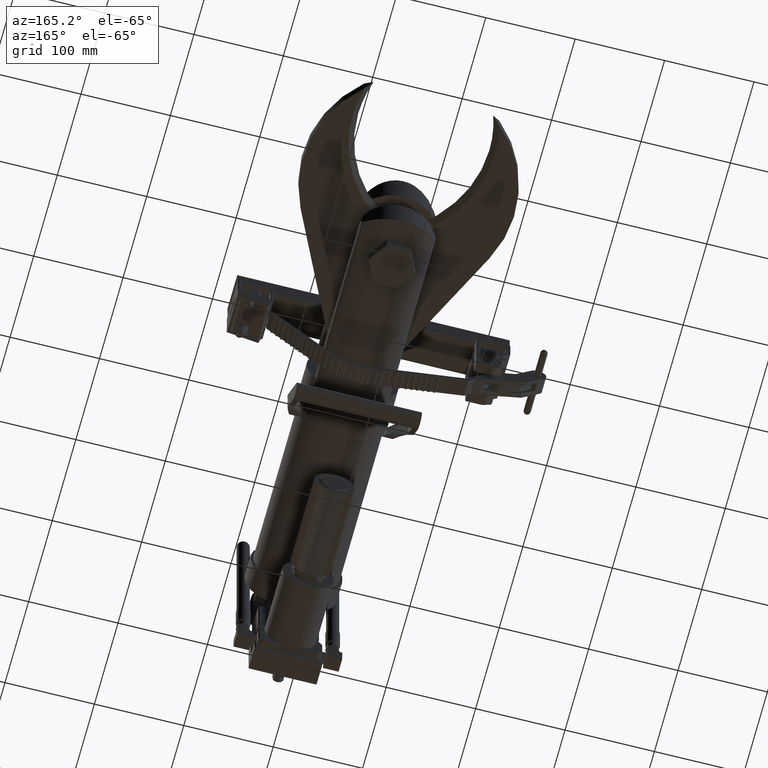
[diagram: clean part render]
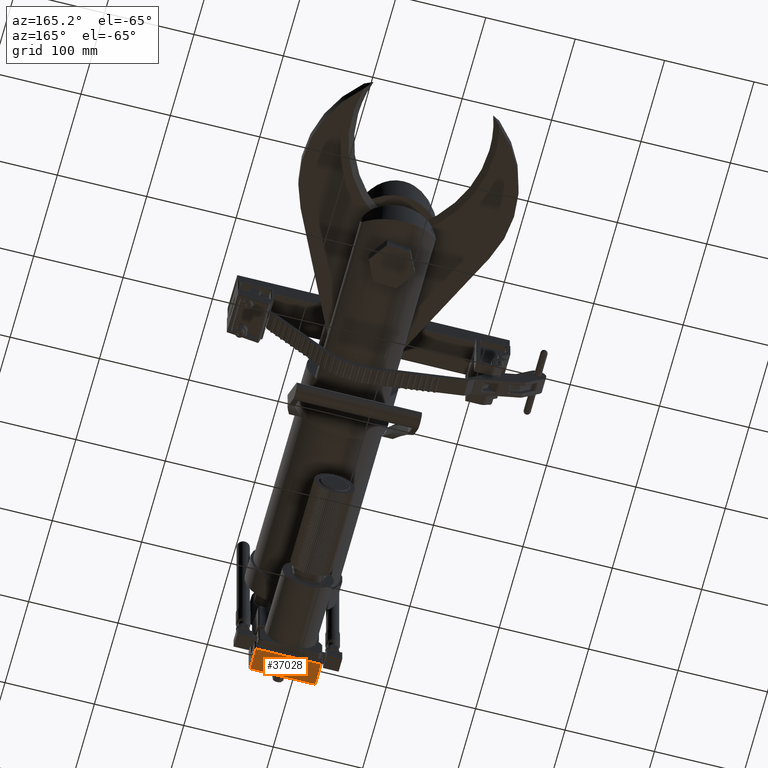
[diagram: same view with one face highlighted and labeled with its STEP entity id]
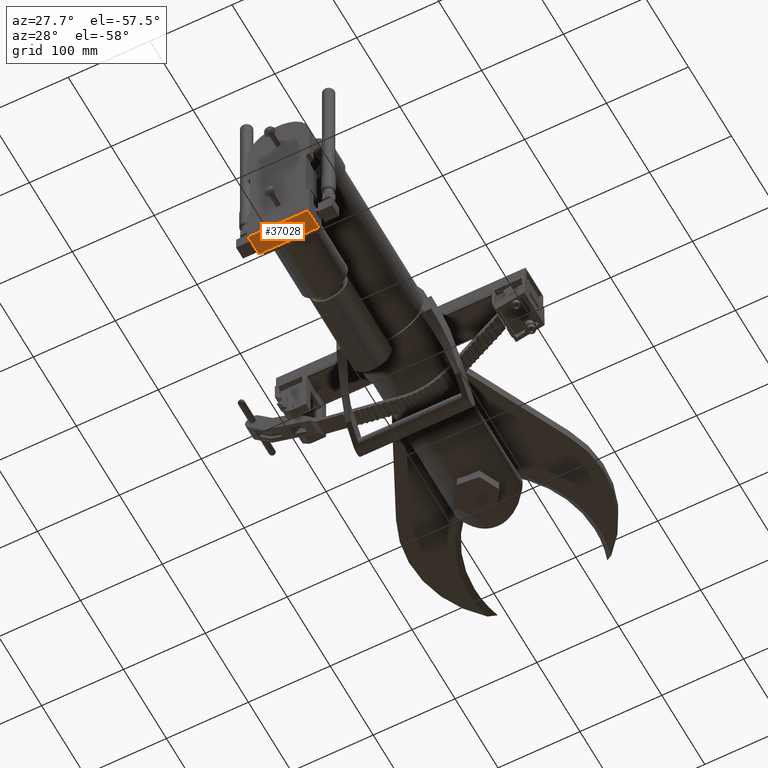
[diagram: same view with one face highlighted and labeled with its STEP entity id]
A machine part, auxiliary view. The second image highlights one B-rep face of the part: STEP entity #37028.
A second angle (auxiliary view) of the same face is appended — the face is thin or edge-on in the first view.
In plain terms, the highlighted planar face has unit normal (0, 0, 1).
Its self-contained STEP definition (entity closure, byte-faithful):
#10032 = FACE_OUTER_BOUND ( 'NONE', #59554, .T. ) ;
#14259 = AXIS2_PLACEMENT_3D ( 'NONE', #19661, #19671, #19672 ) ;
#19661 = CARTESIAN_POINT ( 'NONE',  ( -1.500000000000000400, 1.031250000000000000, -3.125000000000000000 ) ) ;
#19666 = PLANE ( 'NONE',  #14259 ) ;
#19671 = DIRECTION ( 'NONE',  ( 0.0000000000000000000, 0.0000000000000000000, 1.000000000000000000 ) ) ;
#19672 = DIRECTION ( 'NONE',  ( 1.000000000000000000, 0.0000000000000000000, -0.0000000000000000000 ) ) ;
#24444 = LINE ( 'NONE', #26262, #24462 ) ;
#24462 = VECTOR ( 'NONE', #26266, 39.37007874015748100 ) ;
#24470 = LINE ( 'NONE', #26273, #24471 ) ;
#24471 = VECTOR ( 'NONE', #26274, 39.37007874015748100 ) ;
#24472 = LINE ( 'NONE', #26275, #24473 ) ;
#24473 = VECTOR ( 'NONE', #26276, 39.37007874015748100 ) ;
#24474 = LINE ( 'NONE', #26277, #24475 ) ;
#24475 = VECTOR ( 'NONE', #26278, 39.37007874015748100 ) ;
#26262 = CARTESIAN_POINT ( 'NONE',  ( -1.500000000000000400, 0.0000000000000000000, -3.125000000000000000 ) ) ;
#26266 = DIRECTION ( 'NONE',  ( -1.000000000000000000, -0.0000000000000000000, -0.0000000000000000000 ) ) ;
#26273 = CARTESIAN_POINT ( 'NONE',  ( 1.437499999999999600, 1.031250000000000000, -3.125000000000000000 ) ) ;
#26274 = DIRECTION ( 'NONE',  ( 0.0000000000000000000, -1.000000000000000000, 0.0000000000000000000 ) ) ;
#26275 = CARTESIAN_POINT ( 'NONE',  ( 1.437499999999998400, 0.9687500000000000000, -3.125000000000000000 ) ) ;
#26276 = DIRECTION ( 'NONE',  ( 1.000000000000000000, -0.0000000000000000000, -0.0000000000000000000 ) ) ;
#26277 = CARTESIAN_POINT ( 'NONE',  ( -1.437500000000000400, 1.031250000000000000, -3.125000000000000000 ) ) ;
#26278 = DIRECTION ( 'NONE',  ( -0.0000000000000000000, 1.000000000000000000, -0.0000000000000000000 ) ) ;
#29878 = CARTESIAN_POINT ( 'NONE',  ( -1.437500000000000400, 0.9687500000000000000, -3.125000000000000000 ) ) ;
#29879 = CARTESIAN_POINT ( 'NONE',  ( 1.437500000000000000, 0.9687500000000000000, -3.125000000000000000 ) ) ;
#29880 = CARTESIAN_POINT ( 'NONE',  ( 1.437499999999998400, 0.0000000000000000000, -3.125000000000000000 ) ) ;
#29881 = CARTESIAN_POINT ( 'NONE',  ( -1.437500000000000400, 0.0000000000000000000, -3.125000000000000000 ) ) ;
#37028 = ADVANCED_FACE ( 'NONE', ( #10032 ), #19666, .F. ) ;
#37754 = EDGE_CURVE ( 'NONE', #39159, #39160, #24444, .T. ) ;
#37758 = EDGE_CURVE ( 'NONE', #39158, #39159, #24470, .T. ) ;
#37759 = EDGE_CURVE ( 'NONE', #39157, #39158, #24472, .T. ) ;
#37760 = EDGE_CURVE ( 'NONE', #39160, #39157, #24474, .T. ) ;
#39157 = VERTEX_POINT ( 'NONE', #29878 ) ;
#39158 = VERTEX_POINT ( 'NONE', #29879 ) ;
#39159 = VERTEX_POINT ( 'NONE', #29880 ) ;
#39160 = VERTEX_POINT ( 'NONE', #29881 ) ;
#48011 = ORIENTED_EDGE ( 'NONE', *, *, #37759, .T. ) ;
#48012 = ORIENTED_EDGE ( 'NONE', *, *, #37758, .T. ) ;
#48013 = ORIENTED_EDGE ( 'NONE', *, *, #37754, .T. ) ;
#48014 = ORIENTED_EDGE ( 'NONE', *, *, #37760, .T. ) ;
#59554 = EDGE_LOOP ( 'NONE', ( #48011, #48012, #48013, #48014 ) ) ;